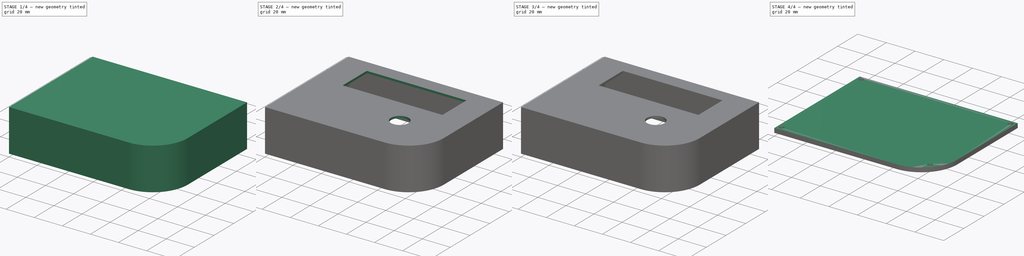
[diagram: build sequence overview — one tinted view per stage of 4, left to right]
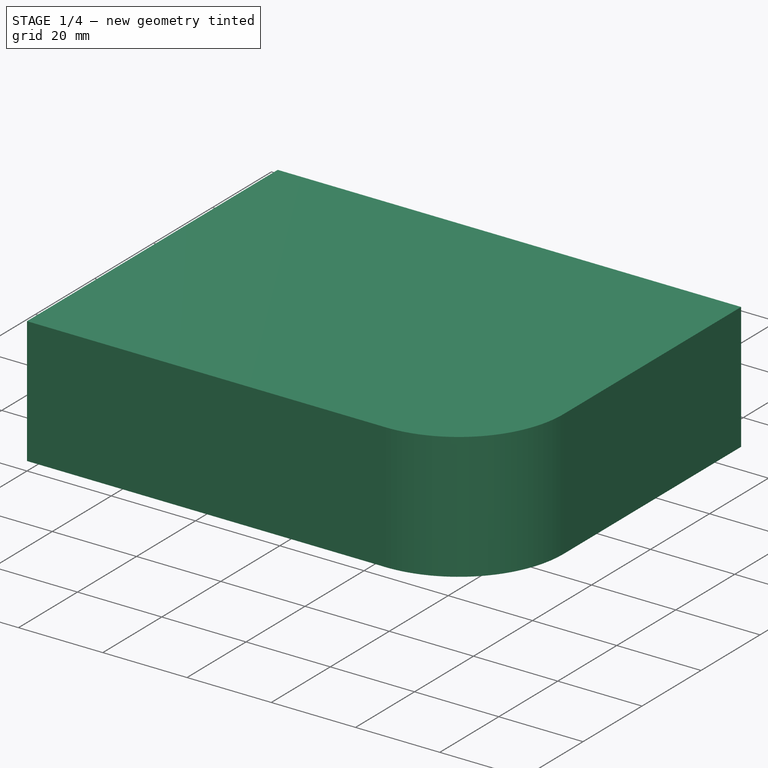
[diagram: stage 1 of 4 — iso view after this stage's code; geometry added in this stage tinted green]
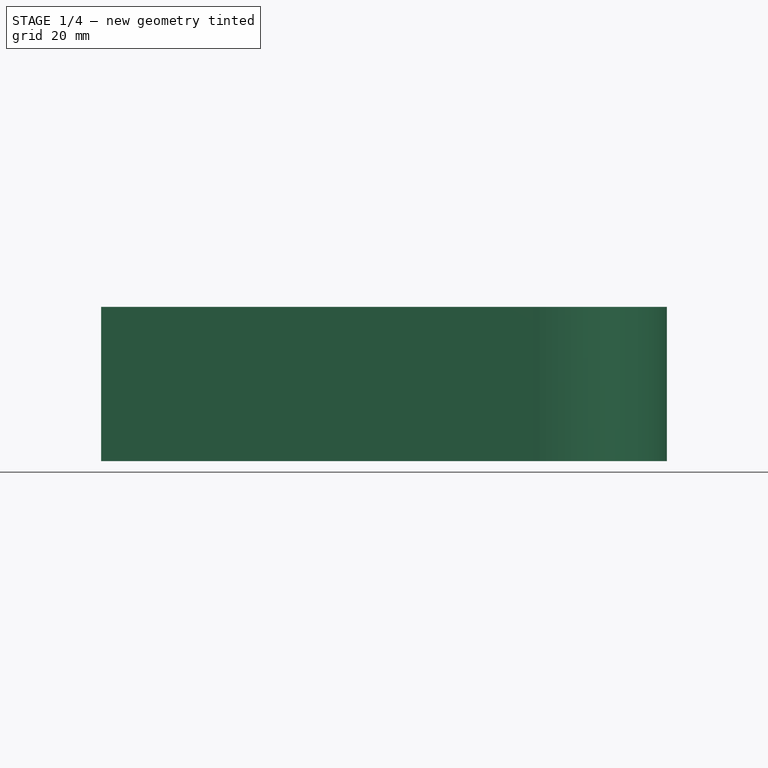
[diagram: stage 1 of 4 — front view after this stage's code; geometry added in this stage tinted green]
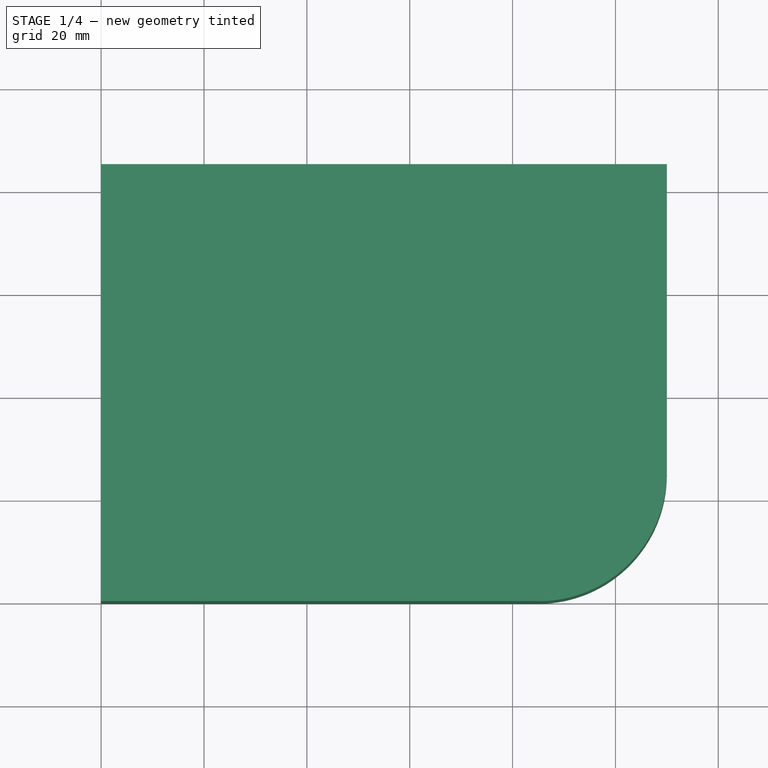
[diagram: stage 1 of 4 — top view after this stage's code; geometry added in this stage tinted green]
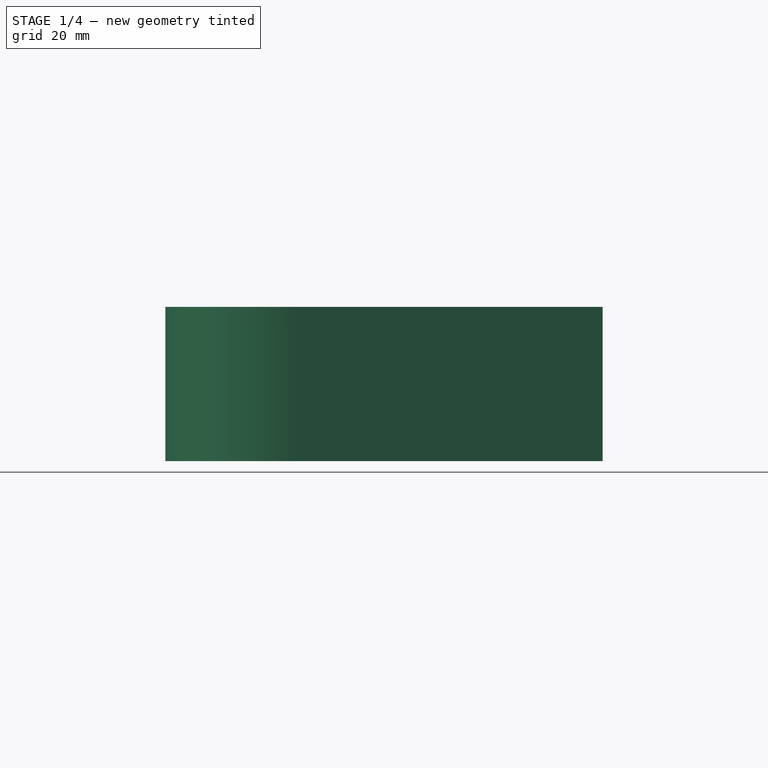
[diagram: stage 1 of 4 — right view after this stage's code; geometry added in this stage tinted green]
FCSTD DOCUMENT  (FreeCAD 0.18R16117 (Git))
Label: GameBoy
License: All rights reserved
LicenseURL: http://en.wikipedia.org/wiki/All_rights_reserved
objects: Sketcher::SketchObject×8, PartDesign::Pad×5, PartDesign::Pocket×3, PartDesign::Body×2, PartDesign::Thickness×1, PartDesign::ShapeBinder×1
note: 28 computed .brp shape members not serialized (recipe doc carries the construction recipe); baked Part::Feature solids carry a one-line shape summary decoded from their .brp

FEATURE [Sketcher::SketchObject] Sketch
  MapMode = 5
  Support = -> [XY_Plane]
  sketch-geometry (5):
    g0: LineSegment StartX=0 StartY=85 StartZ=0 EndX=110 EndY=85 EndZ=0
    g1: LineSegment StartX=84 StartY=0 StartZ=0 EndX=0 EndY=0 EndZ=0
    g2: LineSegment StartX=0 StartY=0 StartZ=0 EndX=0 EndY=85 EndZ=0
    g3: LineSegment StartX=110 StartY=85 StartZ=0 EndX=110 EndY=25 EndZ=0
    g4: ArcOfCircle CenterX=85 CenterY=24.98 CenterZ=0 NormalX=0 NormalY=0 NormalZ=1 AngleXU=0 Radius=25 StartAngle=4.67238 EndAngle=6.28399
  constraints (15):
    c: Coincident(g4,g3)
    c: Coincident(g4,g1)
    c: Coincident(g1,g2)
    c: Coincident(g2,g0)
    c: Coincident(g0,g3)
    c: Horizontal(g0)
    c: Horizontal(g1)
    c: Vertical(g3)
    c: Vertical(g2)
    c: DistanceX(g0,g0) = 110
    c: DistanceY(g2,g2) = 85
    c: Radius(g4) = 25
    c: Coincident(g1,g-1)
    c: DistanceY(g3,g3) = 60
    c: DistanceX(g1,g1) = 84
FEATURE [PartDesign::Pad] Pad
  Length = 30
  Length2 = 100
  Profile = -> Sketch
  Type = 0
FEATURE [Sketcher::SketchObject] Sketch001
  ExternalGeometry = -> [Pad]
  MapMode = 5
  Placement = pos=(0,0,30) rot=(0,0,1;0rad)
  Support = -> [Pad]
  sketch-geometry (4):
    g0: LineSegment StartX=20 StartY=75 StartZ=0 EndX=91 EndY=75 EndZ=0
    g1: LineSegment StartX=91 StartY=75 StartZ=0 EndX=91 EndY=50.5 EndZ=0
    g2: LineSegment StartX=91 StartY=50.5 StartZ=0 EndX=20 EndY=50.5 EndZ=0
    g3: LineSegment StartX=20 StartY=50.5 StartZ=0 EndX=20 EndY=75 EndZ=0
  constraints (12):
    c: Coincident(g0,g1)
    c: Coincident(g1,g2)
    c: Coincident(g2,g3)
    c: Coincident(g3,g0)
    c: Horizontal(g0)
    c: Horizontal(g2)
    c: Vertical(g1)
    c: Vertical(g3)
    c: DistanceX(g0,g0) = 71
    c: DistanceY(g1,g1) = 24.5
    c: DistanceX(g-1,g0) = 20
    c: DistanceY(g0,g-3) = 10
FEATURE [PartDesign::Thickness] Thickness
  Base = -> Pad [Face6]
  BaseFeature = -> Pad
  Join = 0
  Mode = 0
  Reversed = true
  Value = 1.5
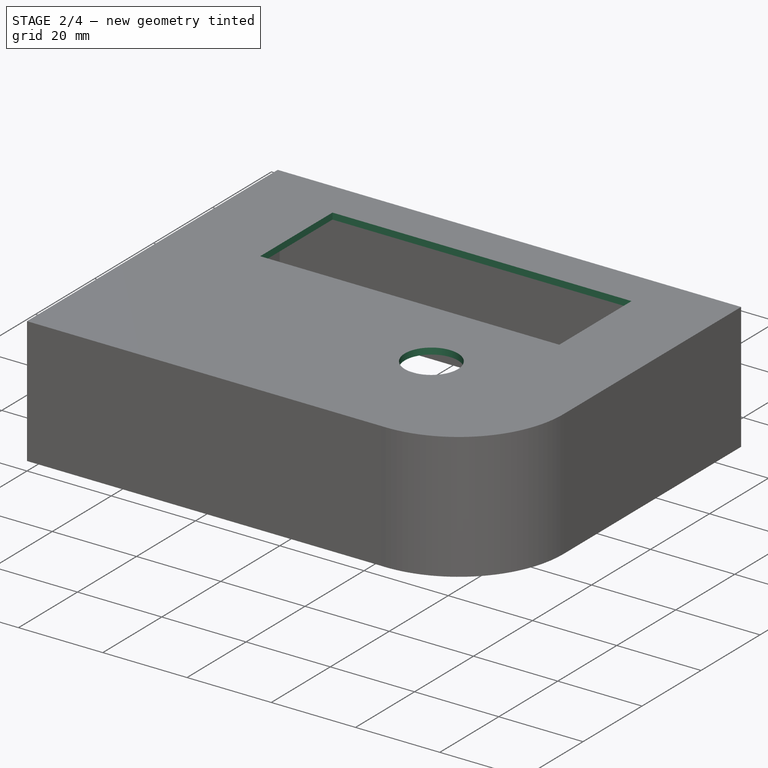
[diagram: stage 2 of 4 — iso view after this stage's code; geometry added in this stage tinted green]
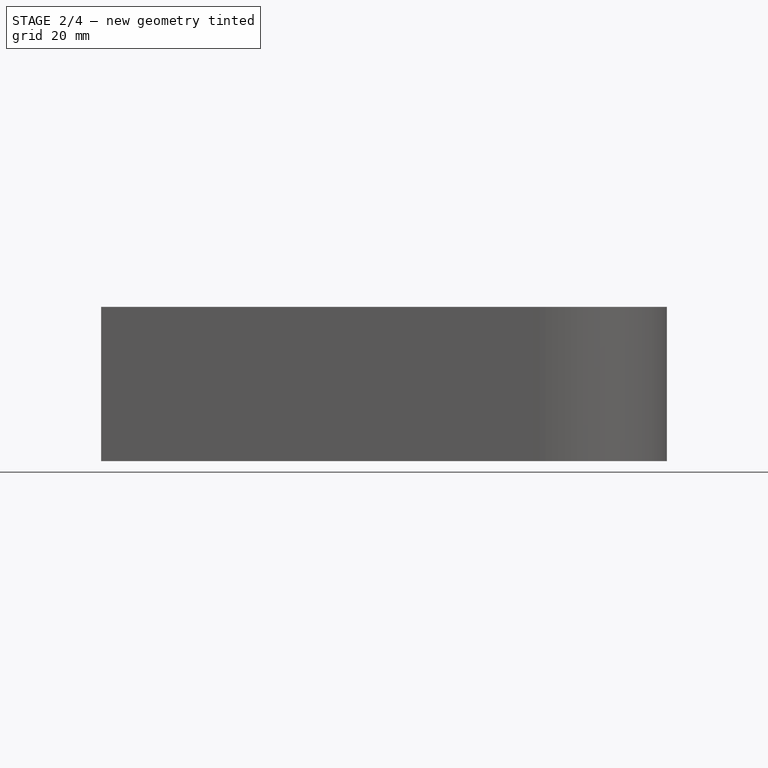
[diagram: stage 2 of 4 — front view after this stage's code; geometry added in this stage tinted green]
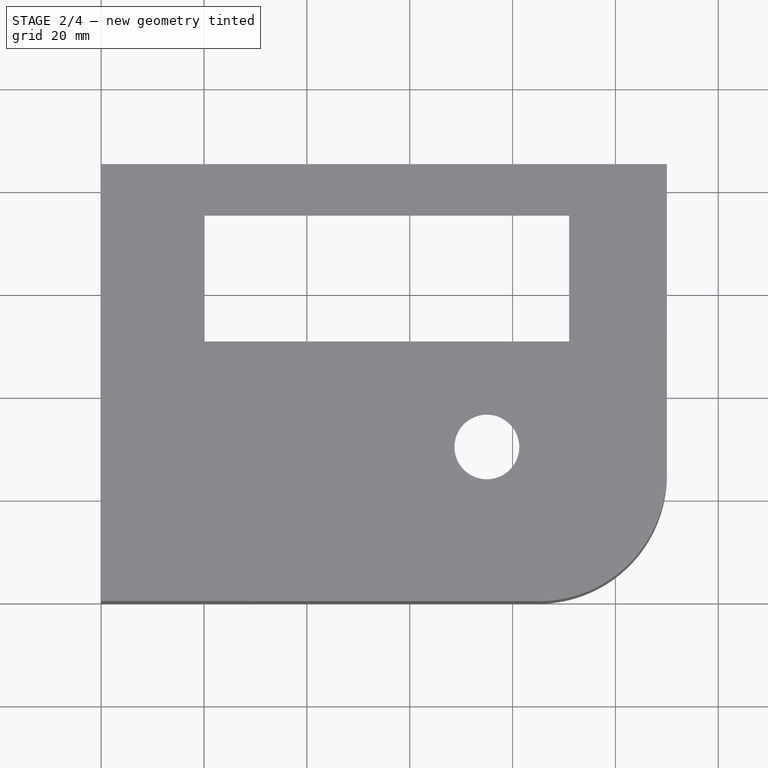
[diagram: stage 2 of 4 — top view after this stage's code; geometry added in this stage tinted green]
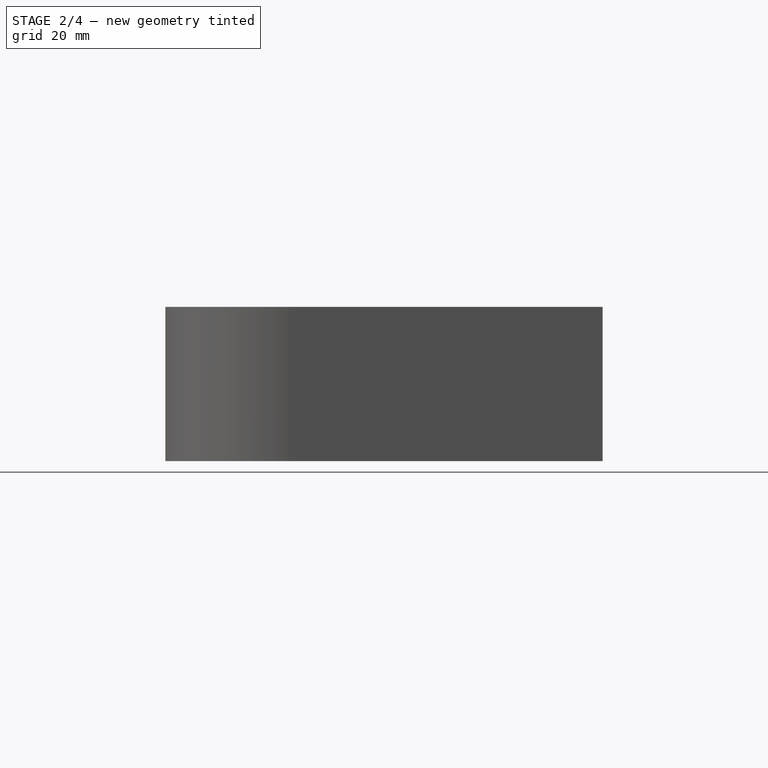
[diagram: stage 2 of 4 — right view after this stage's code; geometry added in this stage tinted green]
FEATURE [PartDesign::Pocket] Pocket
  BaseFeature = -> Thickness
  Length = 5
  Length2 = 100
  Profile = -> Sketch001
  Type = 0
FEATURE [Sketcher::SketchObject] Sketch002
  ExternalGeometry = -> [Pocket]
  MapMode = 5
  Placement = pos=(0,0,30) rot=(0,0,1;0rad)
  Support = -> [Pocket]
  sketch-geometry (1):
    g0: Circle CenterX=75 CenterY=30 CenterZ=0 NormalX=0 NormalY=0 NormalZ=1 AngleXU=0 Radius=6.3
  constraints (3):
    c: DistanceY(g-1,g0) = 30
    c: DistanceX(g0,g-3) = 35
    c: Radius(g0) = 6.3
FEATURE [PartDesign::Pocket] Pocket001
  BaseFeature = -> Pocket
  Length = 5
  Length2 = 100
  Profile = -> Sketch002
  Type = 0
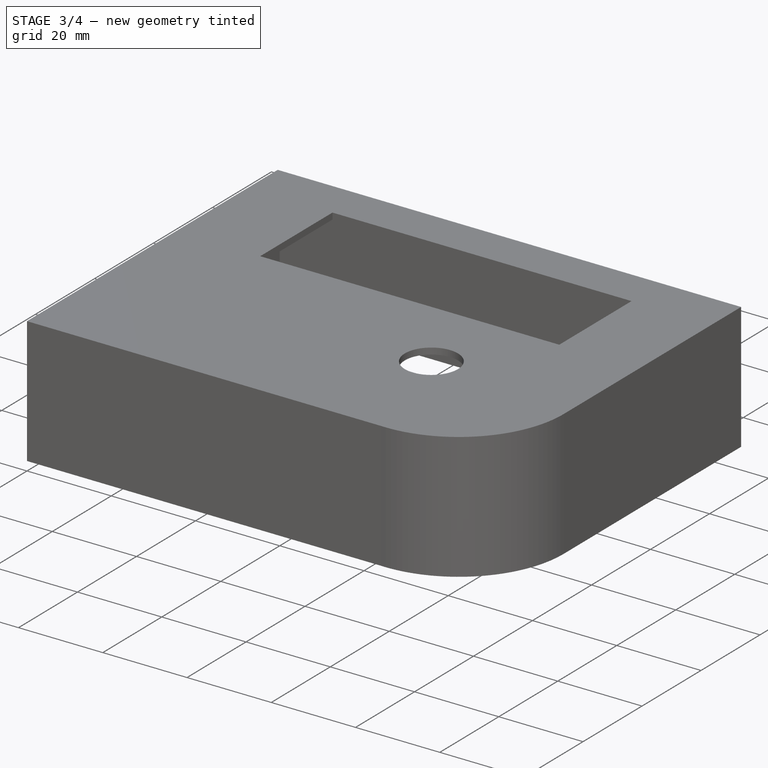
[diagram: stage 3 of 4 — iso view after this stage's code; geometry added in this stage tinted green]
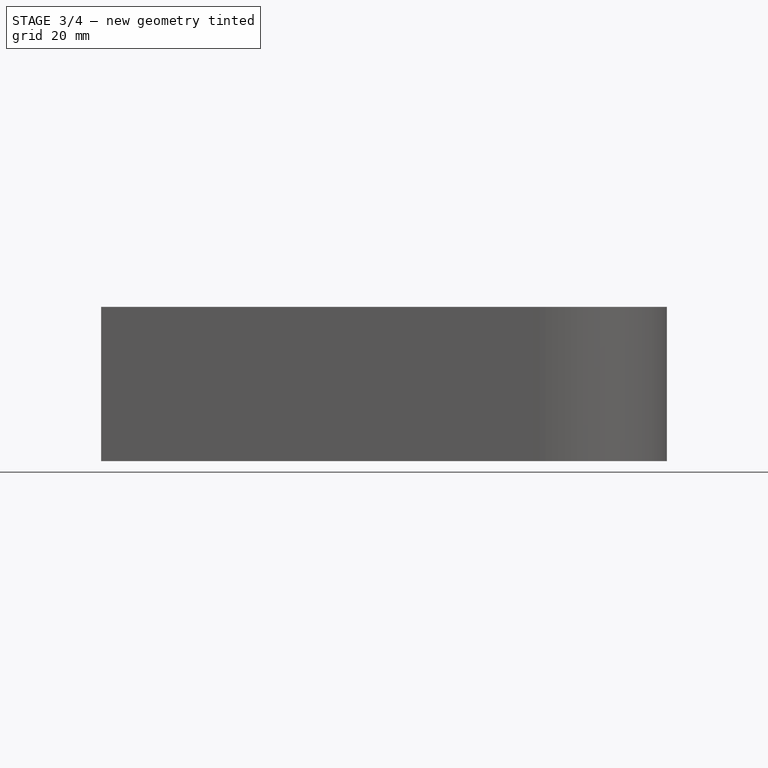
[diagram: stage 3 of 4 — front view after this stage's code; geometry added in this stage tinted green]
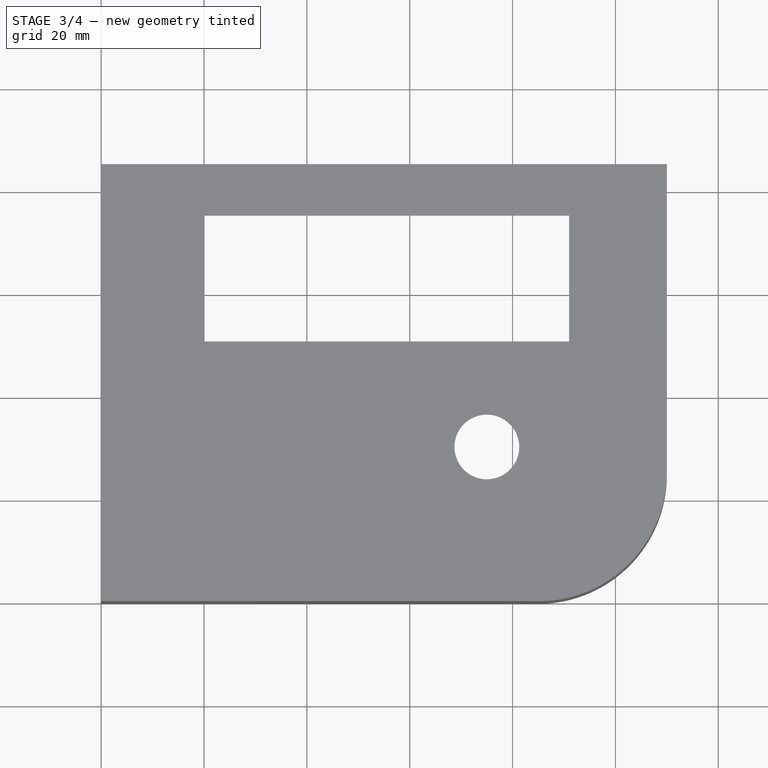
[diagram: stage 3 of 4 — top view after this stage's code; geometry added in this stage tinted green]
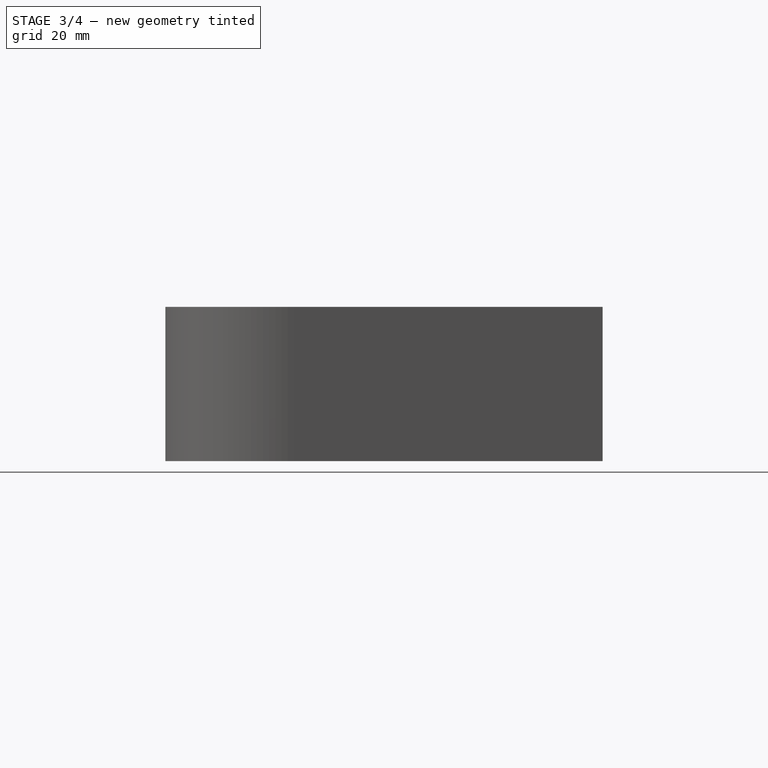
[diagram: stage 3 of 4 — right view after this stage's code; geometry added in this stage tinted green]
FEATURE [Sketcher::SketchObject] Sketch003
  MapMode = 5
  Placement = pos=(0,0,0) rot=(0.57735,-0.57735,-0.57735;2.0944rad)
  Support = -> [Pocket001]
  sketch-geometry (4):
    g0: LineSegment StartX=-48 StartY=21 StartZ=0 EndX=-5 EndY=21 EndZ=0
    g1: LineSegment StartX=-5 StartY=21 StartZ=0 EndX=-5 EndY=5 EndZ=0
    g2: LineSegment StartX=-5 StartY=5 StartZ=0 EndX=-48 EndY=5 EndZ=0
    g3: LineSegment StartX=-48 StartY=5 StartZ=0 EndX=-48 EndY=21 EndZ=0
  constraints (12):
    c: Coincident(g0,g1)
    c: Coincident(g1,g2)
    c: Coincident(g2,g3)
    c: Coincident(g3,g0)
    c: Horizontal(g0)
    c: Horizontal(g2)
    c: Vertical(g1)
    c: Vertical(g3)
    c: DistanceX(g0,g0) = 43
    c: DistanceY(g3,g3) = 16
    c: DistanceX(g1,g-1) = 5
    c: DistanceY(g-1,g2) = 5
FEATURE [PartDesign::Pocket] Pocket002
  BaseFeature = -> Pocket001
  Length = 5
  Length2 = 100
  Profile = -> Sketch003
  Type = 0
FEATURE [Sketcher::SketchObject] Sketch004
  ExternalGeometry = -> [Sketch,Pocket001]
  MapMode = 5
  Placement = pos=(0,0,0) rot=(1,0,0;3.14159rad)
  Support = -> [Pocket001]
  sketch-geometry (8):
    g0: Circle CenterX=3.1 CenterY=-3.1 CenterZ=0 NormalX=0 NormalY=0 NormalZ=1 AngleXU=0 Radius=1.5
    g1: Circle CenterX=3.1 CenterY=-3.1 CenterZ=0 NormalX=0 NormalY=0 NormalZ=1 AngleXU=0 Radius=3
    g2: Circle CenterX=3.1 CenterY=-81.9 CenterZ=0 NormalX=0 NormalY=0 NormalZ=1 AngleXU=0 Radius=1.5
    g3: Circle CenterX=3.1 CenterY=-81.9 CenterZ=0 NormalX=0 NormalY=0 NormalZ=1 AngleXU=0 Radius=3
    g4: Circle CenterX=106.9 CenterY=-81.9 CenterZ=0 NormalX=0 NormalY=0 NormalZ=1 AngleXU=0 Radius=1.5
    g5: Circle CenterX=106.9 CenterY=-81.9 CenterZ=0 NormalX=0 NormalY=0 NormalZ=1 AngleXU=0 Radius=3
    g6: Circle CenterX=101.12 CenterY=-10.44 CenterZ=0 NormalX=0 NormalY=0 NormalZ=1 AngleXU=0 Radius=3.08737
    g7: Circle CenterX=101.12 CenterY=-10.44 CenterZ=0 NormalX=0 NormalY=0 NormalZ=1 AngleXU=0 Radius=1.51959
  constraints (18):
    c: Coincident(g1,g0)
    c: Radius(g1) = 3
    c: Radius(g0) = 1.5
    c: Coincident(g2,g3)
    c: DistanceX(g-3,g2) = 3.1
    c: DistanceY(g-3,g2) = 3.1
    c: Radius(g3) = 3
    c: Radius(g2) = 1.5
    c: Coincident(g4,g5)
    c: Radius(g4) = 1.5
    c: Radius(g5) = 3
    c: DistanceY(g0,g-1) = 3.1
    c: DistanceX(g-1,g0) = 3.1
    c: DistanceX(g4,g-3) = 3.1
    c: DistanceY(g-3,g4) = 3.1
    c: Coincident(g7,g6)
    c: DistanceX(g-4,g6) = 16.12
    c: DistanceY(g-4,g6) = 14.54
FEATURE [PartDesign::Pad] Pad001
  BaseFeature = -> Pocket002
  Length = 5
  Length2 = 100
  Profile = -> Sketch004
  Reversed = true
  Type = 0
FEATURE [Sketcher::SketchObject] Sketch005
  ExternalGeometry = -> [Pad001]
  MapMode = 5
  Placement = pos=(0,0,28.5) rot=(1,0,0;3.14159rad)
  Support = -> [Pad001]
  sketch-geometry (8):
    g0: LineSegment StartX=1.5 StartY=-33 StartZ=0 EndX=57.5 EndY=-33 EndZ=0
    g1: LineSegment StartX=57.5 StartY=-33 StartZ=0 EndX=57.5 EndY=-30 EndZ=0
    g2: LineSegment StartX=57.5 StartY=-30 StartZ=0 EndX=1.5 EndY=-30 EndZ=0
    g3: LineSegment StartX=1.5 StartY=-30 StartZ=0 EndX=1.5 EndY=-33 EndZ=0
    g4: LineSegment StartX=1.5 StartY=-13 StartZ=0 EndX=57.5 EndY=-13 EndZ=0
    g5: LineSegment StartX=57.5 StartY=-13 StartZ=0 EndX=57.5 EndY=-10 EndZ=0
    g6: LineSegment StartX=57.5 StartY=-10 StartZ=0 EndX=1.5 EndY=-10 EndZ=0
    g7: LineSegment StartX=1.5 StartY=-10 StartZ=0 EndX=1.5 EndY=-13 EndZ=0
  constraints (24):
    c: Coincident(g0,g1)
    c: Coincident(g1,g2)
    c: Coincident(g2,g3)
    c: Coincident(g3,g0)
    c: Horizontal(g0)
    c: Horizontal(g2)
    c: Vertical(g1)
    c: Vertical(g3)
    c: Coincident(g4,g5)
    c: Coincident(g5,g6)
    c: Coincident(g6,g7)
    c: Coincident(g7,g4)
    c: Horizontal(g4)
    c: Horizontal(g6)
    c: Vertical(g5)
    c: Vertical(g7)
    c: DistanceY(g6,g-1) = 10
    c: Distance(g7) = 3
    c: Distance(g3) = 3
    c: DistanceY(g2,g-1) = 30
    c: Distance(g6) = 56
    c: Distance(g2) = 56
    c: PointOnObject(g6,g-3)
    c: PointOnObject(g2,g-3)
FEATURE [PartDesign::Pad] Pad002
  BaseFeature = -> Pad001
  Length = 6
  Length2 = 100
  Profile = -> Sketch005
  Type = 0
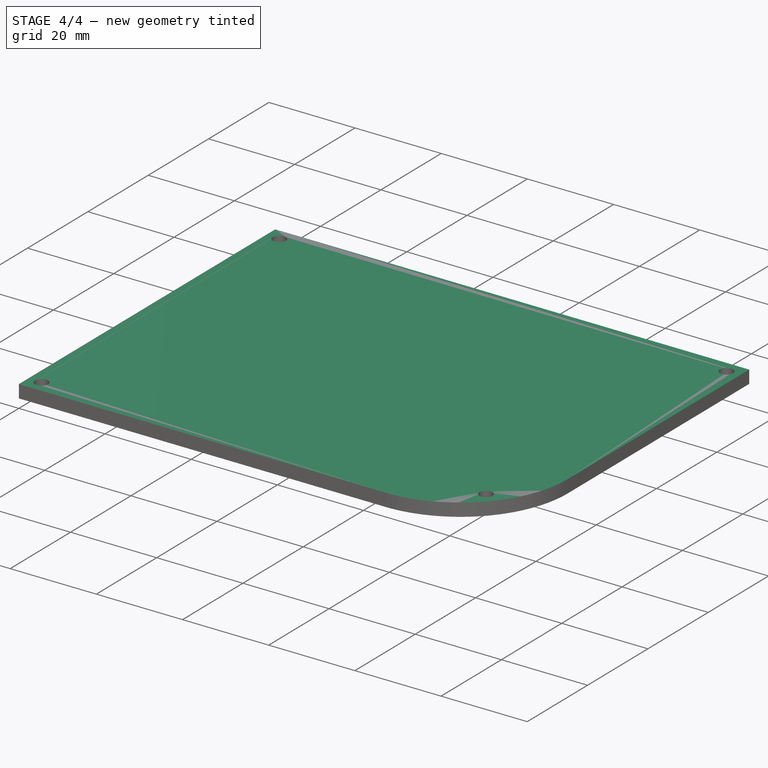
[diagram: stage 4 of 4 — iso view after this stage's code; geometry added in this stage tinted green]
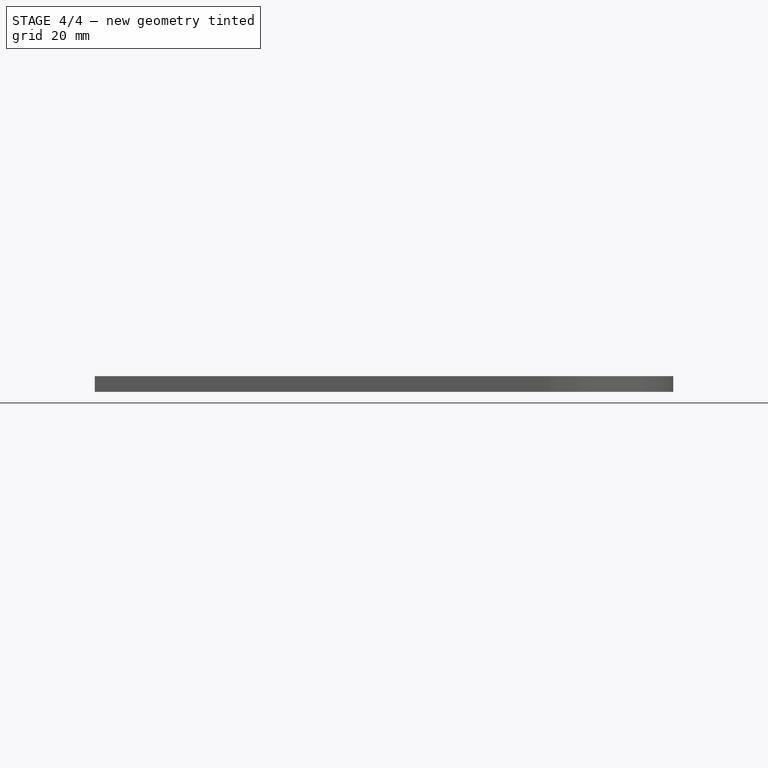
[diagram: stage 4 of 4 — front view after this stage's code; geometry added in this stage tinted green]
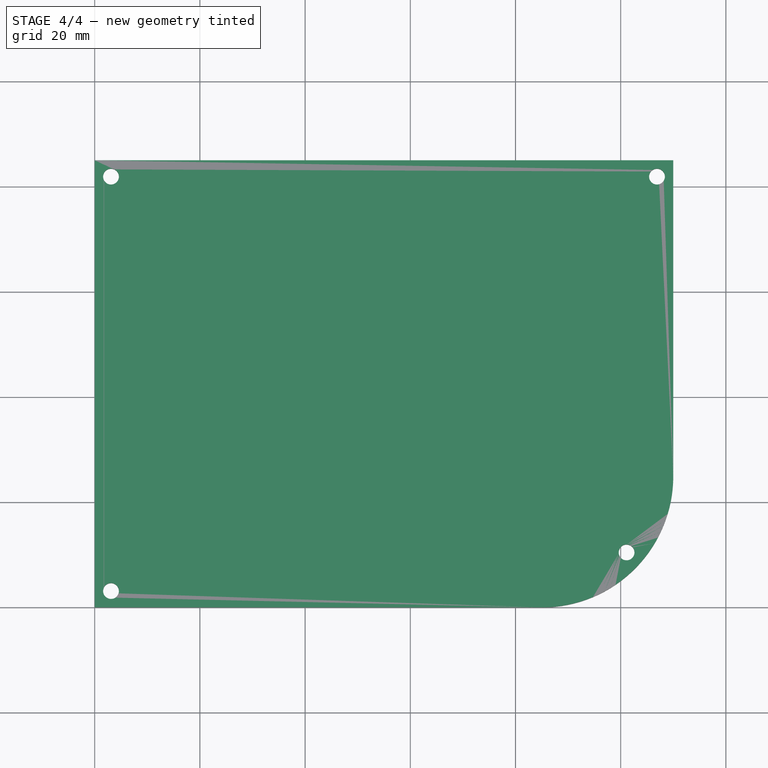
[diagram: stage 4 of 4 — top view after this stage's code; geometry added in this stage tinted green]
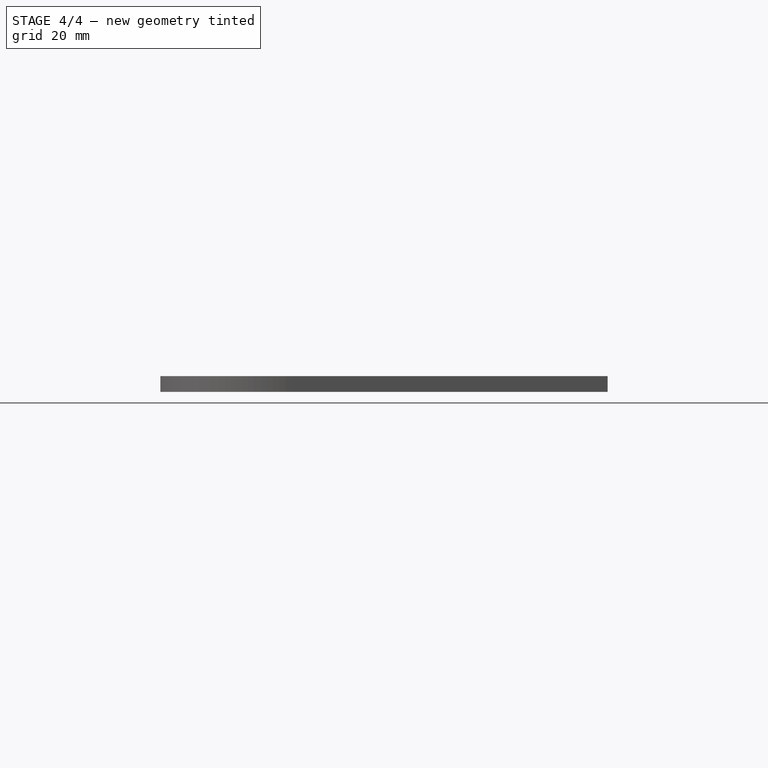
[diagram: stage 4 of 4 — right view after this stage's code; geometry added in this stage tinted green]
FEATURE [Sketcher::SketchObject] Sketch006
  ExternalGeometry = -> [Pad002]
  MapMode = 5
  Placement = pos=(0,0,22.5) rot=(1,0,0;3.14159rad)
  Support = -> [Pad002]
  sketch-geometry (4):
    g0: LineSegment StartX=1.5 StartY=-6.4 StartZ=0 EndX=57.5 EndY=-6.4 EndZ=0
    g1: LineSegment StartX=57.5 StartY=-6.4 StartZ=0 EndX=57.5 EndY=-36.4 EndZ=0
    g2: LineSegment StartX=57.5 StartY=-36.4 StartZ=0 EndX=1.5 EndY=-36.4 EndZ=0
    g3: LineSegment StartX=1.5 StartY=-36.4 StartZ=0 EndX=1.5 EndY=-6.4 EndZ=0
  constraints (12):
    c: Coincident(g0,g1)
    c: Coincident(g1,g2)
    c: Coincident(g2,g3)
    c: Coincident(g3,g0)
    c: Horizontal(g0)
    c: Horizontal(g2)
    c: Vertical(g1)
    c: Vertical(g3)
    c: PointOnObject(g0,g-3)
    c: DistanceX(g0,g-4) = 0
    c: Distance(g1) = 30
    c: DistanceY(g0,g-1) = 6.4
FEATURE [PartDesign::Pad] Pad003
  BaseFeature = -> Pad002
  Length = 1
  Length2 = 100
  Profile = -> Sketch006
  Type = 0
FEATURE [PartDesign::Body] Body
  Group = -> [Sketch,Pad,Sketch001,Thickness,Pocket,Sketch002,Pocket001,Sketch003,Pocket002,Sketch004,Pad001,Sketch005,Pad002,Sketch006,Pad003]
  Origin = -> Origin
  Tip = -> Pad003
FEATURE [PartDesign::ShapeBinder] ShapeBinder
  Support = -> [Pad003]
  TraceSupport = false
FEATURE [Sketcher::SketchObject] Sketch007
  ExternalGeometry = -> [ShapeBinder]
  MapMode = 5
  Support = -> [XY_Plane001]
  sketch-geometry (9):
    g0: LineSegment StartX=0 StartY=85 StartZ=0 EndX=110 EndY=85 EndZ=0
    g1: LineSegment StartX=110 StartY=85 StartZ=0 EndX=110 EndY=25 EndZ=0
    g2: LineSegment StartX=84 StartY=0 StartZ=0 EndX=0 EndY=0 EndZ=0
    g3: LineSegment StartX=0 StartY=0 StartZ=0 EndX=0 EndY=85 EndZ=0
    g4: ArcOfCircle CenterX=85 CenterY=24.98 CenterZ=0 NormalX=0 NormalY=0 NormalZ=1 AngleXU=0 Radius=25 StartAngle=4.67238 EndAngle=6.28399
    g5: Circle CenterX=3.1 CenterY=3.1 CenterZ=0 NormalX=0 NormalY=0 NormalZ=1 AngleXU=0 Radius=1.5
    g6: Circle CenterX=3.1 CenterY=81.9 CenterZ=0 NormalX=0 NormalY=0 NormalZ=1 AngleXU=0 Radius=1.5
    g7: Circle CenterX=106.9 CenterY=81.9 CenterZ=0 NormalX=0 NormalY=0 NormalZ=1 AngleXU=0 Radius=1.5
    g8: Circle CenterX=101.12 CenterY=10.44 CenterZ=0 NormalX=0 NormalY=0 NormalZ=1 AngleXU=0 Radius=1.5
  constraints (19):
    c: Coincident(g2,g-6)
    c: Coincident(g2,g-1)
    c: Coincident(g2,g3)
    c: Coincident(g3,g-7)
    c: Coincident(g3,g0)
    c: Coincident(g1,g-4)
    c: Coincident(g1,g0)
    c: Coincident(g1,g-5)
    c: Coincident(g4,g1)
    c: Coincident(g4,g2)
    c: Radius(g4) = 25
    c: Coincident(g5,g-11)
    c: Radius(g5) = 1.5
    c: Coincident(g6,g-8)
    c: Radius(g6) = 1.5
    c: Coincident(g7,g-9)
    c: Radius(g7) = 1.5
    c: Coincident(g8,g-10)
    c: Radius(g8) = 1.5
FEATURE [PartDesign::Pad] Pad004
  Length = 3
  Length2 = 100
  Profile = -> Sketch007
  Type = 0
FEATURE [PartDesign::Body] Body001
  Group = -> [ShapeBinder,Sketch007,Pad004]
  Origin = -> Origin001
  Tip = -> Pad004
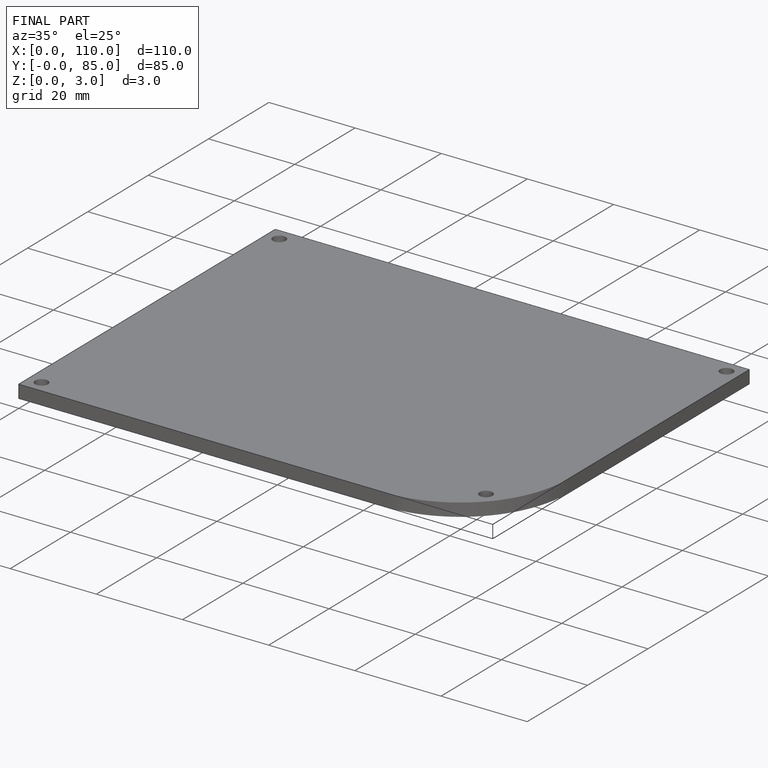
[diagram: finished part — iso view with bounding-box wireframe]
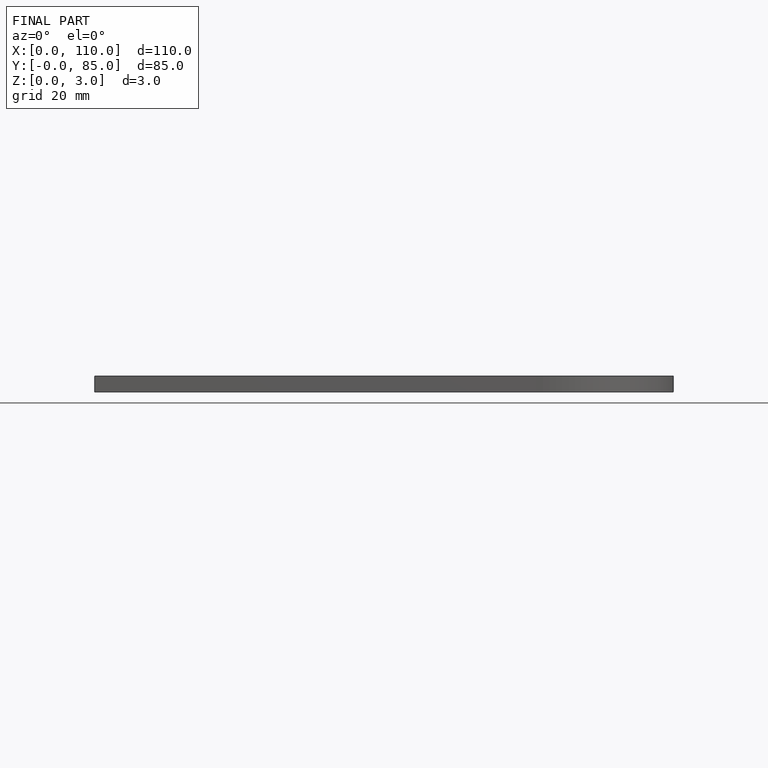
[diagram: finished part — front view with bounding-box wireframe]
